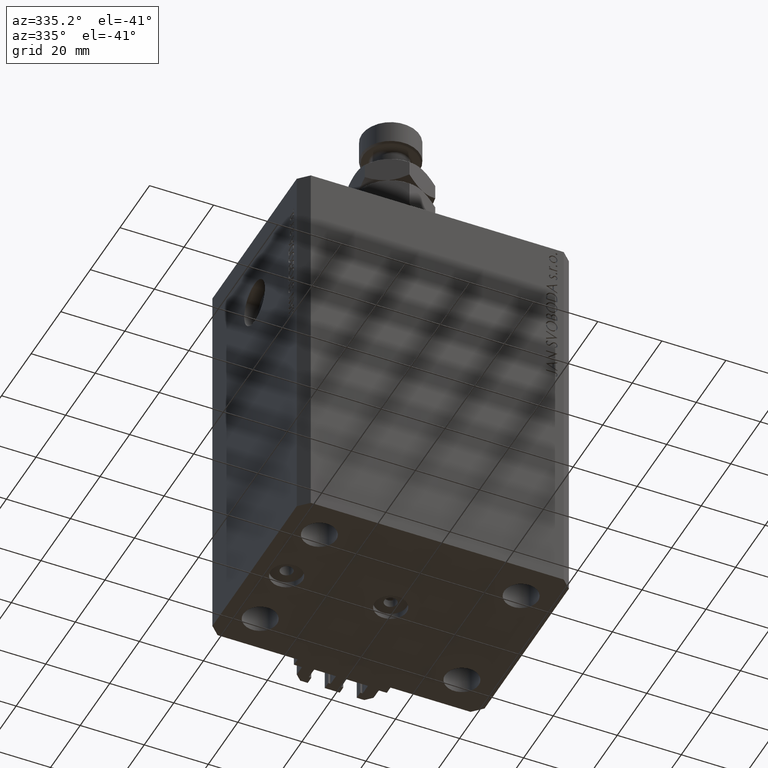
[diagram: clean part render]
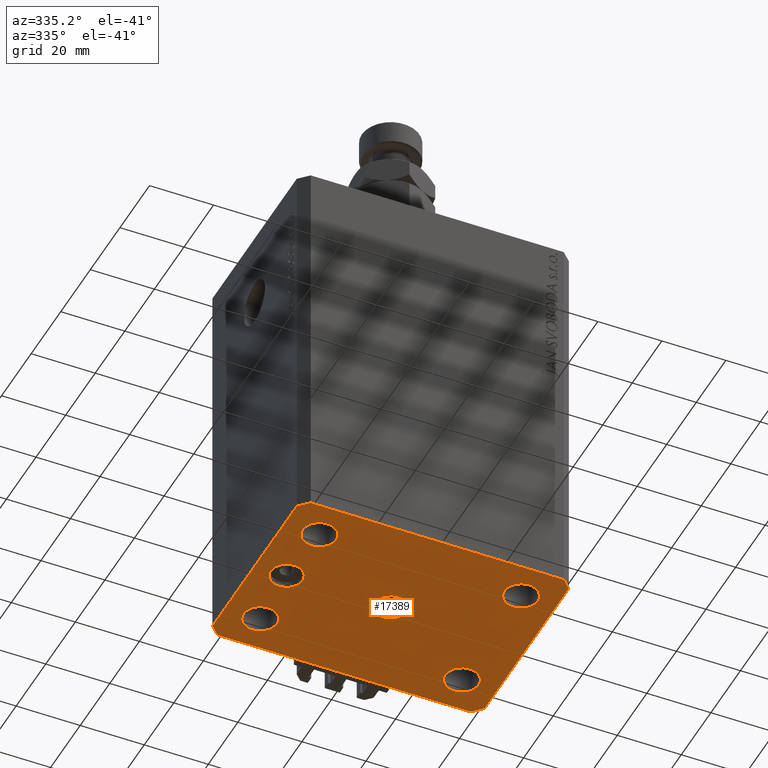
[diagram: same view with one face highlighted and labeled with its STEP entity id]
A machine part, auxiliary view. The second image highlights one B-rep face of the part: STEP entity #17389.
In plain terms, the highlighted planar face has unit normal (0, 0, 1).
Its self-contained STEP definition (entity closure, byte-faithful):
#393 = FACE_BOUND ( 'NONE', #38504, .T. ) ;
#733 = EDGE_CURVE ( 'NONE', #18861, #32940, #9337, .T. ) ;
#808 = VECTOR ( 'NONE', #39582, 1000.000000000000000 ) ;
#1113 = DIRECTION ( 'NONE',  ( 1.000000000000000000, 0.000000000000000000, 0.000000000000000000 ) ) ;
#1997 = CARTESIAN_POINT ( 'NONE',  ( -42.50000000000000000, -28.50000000000000000, -123.0000000000000000 ) ) ;
#2126 = EDGE_CURVE ( 'NONE', #23065, #38907, #45136, .T. ) ;
#2165 = VERTEX_POINT ( 'NONE', #28685 ) ;
#2398 = AXIS2_PLACEMENT_3D ( 'NONE', #5884, #47504, #6126 ) ;
#2417 = CARTESIAN_POINT ( 'NONE',  ( -31.50000000000000000, 19.99999999999999645, -123.0000000000000000 ) ) ;
#2634 = CIRCLE ( 'NONE', #5004, 5.250000000000000888 ) ;
#2753 = DIRECTION ( 'NONE',  ( 1.000000000000000000, 0.000000000000000000, -0.000000000000000000 ) ) ;
#2847 = EDGE_CURVE ( 'NONE', #46237, #17879, #11118, .T. ) ;
#3498 = DIRECTION ( 'NONE',  ( 1.000000000000000000, 0.000000000000000000, 0.000000000000000000 ) ) ;
#3975 = CARTESIAN_POINT ( 'NONE',  ( 26.24999999999999645, -20.00000000000000355, -123.0000000000000000 ) ) ;
#4167 = DIRECTION ( 'NONE',  ( 0.000000000000000000, 0.000000000000000000, -1.000000000000000000 ) ) ;
#4182 = CARTESIAN_POINT ( 'NONE',  ( 31.49999999999999289, -20.00000000000000355, -123.0000000000000000 ) ) ;
#4481 = CIRCLE ( 'NONE', #40129, 5.250000000000000888 ) ;
#4557 = CARTESIAN_POINT ( 'NONE',  ( 39.50000000000056843, 31.50000000000000000, -123.0000000000000000 ) ) ;
#4839 = CARTESIAN_POINT ( 'NONE',  ( 39.50000000000056843, 31.50000000000000000, -123.0000000000000000 ) ) ;
#4919 = AXIS2_PLACEMENT_3D ( 'NONE', #4182, #26016, #41132 ) ;
#5004 = AXIS2_PLACEMENT_3D ( 'NONE', #20827, #9686, #21317 ) ;
#5587 = EDGE_CURVE ( 'NONE', #29445, #13204, #6450, .T. ) ;
#5884 = CARTESIAN_POINT ( 'NONE',  ( -32.50000000000000000, 0.000000000000000000, -123.0000000000000000 ) ) ;
#6126 = DIRECTION ( 'NONE',  ( -1.000000000000000000, 0.000000000000000000, 0.000000000000000000 ) ) ;
#6450 = CIRCLE ( 'NONE', #46820, 5.250000000000000888 ) ;
#6983 = EDGE_CURVE ( 'NONE', #28849, #12690, #19172, .T. ) ;
#7272 = AXIS2_PLACEMENT_3D ( 'NONE', #8385, #4167, #14841 ) ;
#7560 = DIRECTION ( 'NONE',  ( 0.000000000000000000, 0.000000000000000000, 1.000000000000000000 ) ) ;
#7607 = CARTESIAN_POINT ( 'NONE',  ( 31.49999999999999289, -20.00000000000000355, -123.0000000000000000 ) ) ;
#7866 = ORIENTED_EDGE ( 'NONE', *, *, #12911, .F. ) ;
#8096 = ORIENTED_EDGE ( 'NONE', *, *, #47483, .F. ) ;
#8119 = ORIENTED_EDGE ( 'NONE', *, *, #38220, .F. ) ;
#8385 = CARTESIAN_POINT ( 'NONE',  ( 0.000000000000000000, 0.000000000000000000, -123.0000000000000000 ) ) ;
#8456 = ORIENTED_EDGE ( 'NONE', *, *, #6983, .F. ) ;
#8608 = LINE ( 'NONE', #38859, #8731 ) ;
#8731 = VECTOR ( 'NONE', #19509, 1000.000000000000114 ) ;
#8845 = CARTESIAN_POINT ( 'NONE',  ( 36.75000000000000000, 19.99999999999999289, -123.0000000000000000 ) ) ;
#8986 = CIRCLE ( 'NONE', #46214, 4.999999999999997335 ) ;
#9025 = DIRECTION ( 'NONE',  ( -0.000000000000000000, -0.000000000000000000, -1.000000000000000000 ) ) ;
#9039 = CARTESIAN_POINT ( 'NONE',  ( -5.000000000000000000, 0.000000000000000000, -123.0000000000000000 ) ) ;
#9337 = LINE ( 'NONE', #24448, #808 ) ;
#9686 = DIRECTION ( 'NONE',  ( -0.000000000000000000, -0.000000000000000000, -1.000000000000000000 ) ) ;
#9942 = CARTESIAN_POINT ( 'NONE',  ( -27.50000000000000355, 6.123233995736762338E-16, -123.0000000000000000 ) ) ;
#10173 = DIRECTION ( 'NONE',  ( -0.000000000000000000, -0.000000000000000000, -1.000000000000000000 ) ) ;
#10641 = VECTOR ( 'NONE', #13405, 1000.000000000000000 ) ;
#10871 = DIRECTION ( 'NONE',  ( 0.000000000000000000, 0.000000000000000000, -1.000000000000000000 ) ) ;
#10880 = CARTESIAN_POINT ( 'NONE',  ( -36.75000000000000000, 19.99999999999999645, -123.0000000000000000 ) ) ;
#10922 = LINE ( 'NONE', #18354, #48419 ) ;
#11107 = ORIENTED_EDGE ( 'NONE', *, *, #733, .F. ) ;
#11118 = CIRCLE ( 'NONE', #33321, 5.249999999999997335 ) ;
#11168 = CIRCLE ( 'NONE', #34151, 5.000000000000000000 ) ;
#11271 = PLANE ( 'NONE',  #15435 ) ;
#11560 = DIRECTION ( 'NONE',  ( -0.000000000000000000, -0.000000000000000000, -1.000000000000000000 ) ) ;
#11957 = ORIENTED_EDGE ( 'NONE', *, *, #31570, .F. ) ;
#12022 = DIRECTION ( 'NONE',  ( 0.000000000000000000, -1.000000000000000000, 0.000000000000000000 ) ) ;
#12201 = AXIS2_PLACEMENT_3D ( 'NONE', #37196, #10173, #48844 ) ;
#12258 = FACE_BOUND ( 'NONE', #23371, .T. ) ;
#12690 = VERTEX_POINT ( 'NONE', #22102 ) ;
#12911 = EDGE_CURVE ( 'NONE', #13204, #29445, #2634, .T. ) ;
#13153 = DIRECTION ( 'NONE',  ( -1.000000000000000000, 0.000000000000000000, 0.000000000000000000 ) ) ;
#13204 = VERTEX_POINT ( 'NONE', #45726 ) ;
#13315 = DIRECTION ( 'NONE',  ( -0.000000000000000000, -0.000000000000000000, -1.000000000000000000 ) ) ;
#13405 = DIRECTION ( 'NONE',  ( -0.7071067811865471286, -0.7071067811865479058, 0.000000000000000000 ) ) ;
#13999 = LINE ( 'NONE', #21183, #46350 ) ;
#14841 = DIRECTION ( 'NONE',  ( -1.000000000000000000, 0.000000000000000000, 0.000000000000000000 ) ) ;
#14874 = ORIENTED_EDGE ( 'NONE', *, *, #25177, .F. ) ;
#14999 = FACE_BOUND ( 'NONE', #48134, .T. ) ;
#15435 = AXIS2_PLACEMENT_3D ( 'NONE', #41530, #7560, #2753 ) ;
#15674 = CARTESIAN_POINT ( 'NONE',  ( -31.49999999999999289, -20.00000000000000355, -123.0000000000000000 ) ) ;
#15956 = DIRECTION ( 'NONE',  ( -1.000000000000000000, 0.000000000000000000, 0.000000000000000000 ) ) ;
#15969 = DIRECTION ( 'NONE',  ( 1.000000000000000000, 0.000000000000000000, 0.000000000000000000 ) ) ;
#16341 = VERTEX_POINT ( 'NONE', #17418 ) ;
#16399 = CARTESIAN_POINT ( 'NONE',  ( 5.000000000000000000, 6.123233995736765296E-16, -123.0000000000000000 ) ) ;
#16400 = EDGE_CURVE ( 'NONE', #16341, #18861, #18148, .T. ) ;
#16604 = VERTEX_POINT ( 'NONE', #16399 ) ;
#16970 = CARTESIAN_POINT ( 'NONE',  ( -42.50000000000000000, 28.50000000000000000, -123.0000000000000000 ) ) ;
#17092 = EDGE_LOOP ( 'NONE', ( #8456, #29699, #11107, #41248, #24252, #31682, #35366, #20727 ) ) ;
#17389 = ADVANCED_FACE ( 'NONE', ( #31120, #19194, #12258, #393, #14999, #30131, #45237 ), #11271, .F. ) ;
#17418 = CARTESIAN_POINT ( 'NONE',  ( 39.50000000000000711, -31.50000000000000000, -123.0000000000000000 ) ) ;
#17468 = DIRECTION ( 'NONE',  ( 0.7071067811865471286, -0.7071067811865479058, 0.000000000000000000 ) ) ;
#17618 = EDGE_LOOP ( 'NONE', ( #38369, #45514 ) ) ;
#17879 = VERTEX_POINT ( 'NONE', #8845 ) ;
#18063 = DIRECTION ( 'NONE',  ( -1.000000000000000000, 0.000000000000000000, 0.000000000000000000 ) ) ;
#18148 = LINE ( 'NONE', #48389, #31277 ) ;
#18354 = CARTESIAN_POINT ( 'NONE',  ( -39.50000000000000711, -31.50000000000000000, -123.0000000000000000 ) ) ;
#18813 = VERTEX_POINT ( 'NONE', #1997 ) ;
#18861 = VERTEX_POINT ( 'NONE', #36681 ) ;
#19172 = LINE ( 'NONE', #4557, #35058 ) ;
#19194 = FACE_BOUND ( 'NONE', #17618, .T. ) ;
#19509 = DIRECTION ( 'NONE',  ( -0.7071067811865356934, 0.7071067811865594521, 0.000000000000000000 ) ) ;
#20727 = ORIENTED_EDGE ( 'NONE', *, *, #38940, .F. ) ;
#20827 = CARTESIAN_POINT ( 'NONE',  ( -31.50000000000000000, 19.99999999999999645, -123.0000000000000000 ) ) ;
#20993 = CARTESIAN_POINT ( 'NONE',  ( -26.24999999999999289, -20.00000000000000355, -123.0000000000000000 ) ) ;
#21183 = CARTESIAN_POINT ( 'NONE',  ( -42.50000000000000000, -28.50000000000000000, -123.0000000000000000 ) ) ;
#21311 = CARTESIAN_POINT ( 'NONE',  ( 0.000000000000000000, 0.000000000000000000, -123.0000000000000000 ) ) ;
#21317 = DIRECTION ( 'NONE',  ( 1.000000000000000000, 0.000000000000000000, 0.000000000000000000 ) ) ;
#21772 = CARTESIAN_POINT ( 'NONE',  ( -32.50000000000000000, 0.000000000000000000, -123.0000000000000000 ) ) ;
#21968 = CARTESIAN_POINT ( 'NONE',  ( -37.50000000000000000, 0.000000000000000000, -123.0000000000000000 ) ) ;
#22102 = CARTESIAN_POINT ( 'NONE',  ( -39.50000000000000711, 31.50000000000000000, -123.0000000000000000 ) ) ;
#23065 = VERTEX_POINT ( 'NONE', #21968 ) ;
#23099 = CARTESIAN_POINT ( 'NONE',  ( -36.74999999999999289, -20.00000000000000355, -123.0000000000000000 ) ) ;
#23371 = EDGE_LOOP ( 'NONE', ( #32304, #8096 ) ) ;
#23682 = LINE ( 'NONE', #16970, #47619 ) ;
#24252 = ORIENTED_EDGE ( 'NONE', *, *, #32364, .F. ) ;
#24448 = CARTESIAN_POINT ( 'NONE',  ( 42.50000000000000711, -28.50000000000000355, -123.0000000000000000 ) ) ;
#25129 = CARTESIAN_POINT ( 'NONE',  ( 36.74999999999999289, -20.00000000000000355, -123.0000000000000000 ) ) ;
#25177 = EDGE_CURVE ( 'NONE', #35223, #27327, #38174, .T. ) ;
#25468 = AXIS2_PLACEMENT_3D ( 'NONE', #34813, #9025, #1113 ) ;
#26016 = DIRECTION ( 'NONE',  ( -0.000000000000000000, -0.000000000000000000, -1.000000000000000000 ) ) ;
#26291 = CIRCLE ( 'NONE', #4919, 5.249999999999997335 ) ;
#26642 = CARTESIAN_POINT ( 'NONE',  ( 31.50000000000000000, 19.99999999999999289, -123.0000000000000000 ) ) ;
#26858 = EDGE_CURVE ( 'NONE', #32940, #28849, #8608, .T. ) ;
#27327 = VERTEX_POINT ( 'NONE', #3975 ) ;
#27436 = DIRECTION ( 'NONE',  ( 1.000000000000000000, 0.000000000000000000, 0.000000000000000000 ) ) ;
#28210 = DIRECTION ( 'NONE',  ( 1.000000000000000000, 0.000000000000000000, 0.000000000000000000 ) ) ;
#28476 = CARTESIAN_POINT ( 'NONE',  ( -42.50000000000000000, 28.50000000000000000, -123.0000000000000000 ) ) ;
#28486 = ORIENTED_EDGE ( 'NONE', *, *, #5587, .F. ) ;
#28532 = EDGE_CURVE ( 'NONE', #16604, #47300, #36555, .T. ) ;
#28685 = CARTESIAN_POINT ( 'NONE',  ( -39.50000000000000711, -31.50000000000000000, -123.0000000000000000 ) ) ;
#28836 = EDGE_CURVE ( 'NONE', #45608, #18813, #23682, .T. ) ;
#28849 = VERTEX_POINT ( 'NONE', #4839 ) ;
#29445 = VERTEX_POINT ( 'NONE', #10880 ) ;
#29473 = AXIS2_PLACEMENT_3D ( 'NONE', #7607, #11560, #27436 ) ;
#29699 = ORIENTED_EDGE ( 'NONE', *, *, #26858, .F. ) ;
#30131 = FACE_BOUND ( 'NONE', #33275, .T. ) ;
#30280 = ORIENTED_EDGE ( 'NONE', *, *, #2847, .F. ) ;
#30384 = EDGE_CURVE ( 'NONE', #27327, #35223, #26291, .T. ) ;
#31120 = FACE_BOUND ( 'NONE', #33469, .T. ) ;
#31277 = VECTOR ( 'NONE', #44686, 1000.000000000000000 ) ;
#31570 = EDGE_CURVE ( 'NONE', #47300, #16604, #11168, .T. ) ;
#31682 = ORIENTED_EDGE ( 'NONE', *, *, #40550, .F. ) ;
#32129 = EDGE_CURVE ( 'NONE', #33553, #47444, #39698, .T. ) ;
#32270 = DIRECTION ( 'NONE',  ( 0.000000000000000000, 0.000000000000000000, -1.000000000000000000 ) ) ;
#32283 = LINE ( 'NONE', #47371, #10641 ) ;
#32304 = ORIENTED_EDGE ( 'NONE', *, *, #32129, .F. ) ;
#32364 = EDGE_CURVE ( 'NONE', #2165, #16341, #10922, .T. ) ;
#32940 = VERTEX_POINT ( 'NONE', #43805 ) ;
#33275 = EDGE_LOOP ( 'NONE', ( #7866, #28486 ) ) ;
#33321 = AXIS2_PLACEMENT_3D ( 'NONE', #26642, #42000, #15969 ) ;
#33469 = EDGE_LOOP ( 'NONE', ( #11957, #38250 ) ) ;
#33553 = VERTEX_POINT ( 'NONE', #20993 ) ;
#34151 = AXIS2_PLACEMENT_3D ( 'NONE', #21311, #32270, #13153 ) ;
#34343 = CARTESIAN_POINT ( 'NONE',  ( 26.25000000000000355, 19.99999999999999289, -123.0000000000000000 ) ) ;
#34813 = CARTESIAN_POINT ( 'NONE',  ( -31.49999999999999289, -20.00000000000000355, -123.0000000000000000 ) ) ;
#35058 = VECTOR ( 'NONE', #15956, 1000.000000000000000 ) ;
#35223 = VERTEX_POINT ( 'NONE', #25129 ) ;
#35366 = ORIENTED_EDGE ( 'NONE', *, *, #28836, .F. ) ;
#36555 = CIRCLE ( 'NONE', #7272, 5.000000000000000000 ) ;
#36681 = CARTESIAN_POINT ( 'NONE',  ( 42.50000000000000711, -28.50000000000000355, -123.0000000000000000 ) ) ;
#36783 = EDGE_CURVE ( 'NONE', #38907, #23065, #8986, .T. ) ;
#37196 = CARTESIAN_POINT ( 'NONE',  ( 31.50000000000000000, 19.99999999999999289, -123.0000000000000000 ) ) ;
#38174 = CIRCLE ( 'NONE', #29473, 5.249999999999997335 ) ;
#38220 = EDGE_CURVE ( 'NONE', #17879, #46237, #48621, .T. ) ;
#38250 = ORIENTED_EDGE ( 'NONE', *, *, #28532, .F. ) ;
#38369 = ORIENTED_EDGE ( 'NONE', *, *, #2126, .F. ) ;
#38504 = EDGE_LOOP ( 'NONE', ( #14874, #40618 ) ) ;
#38859 = CARTESIAN_POINT ( 'NONE',  ( 42.50000000000051870, 28.49999999999995381, -123.0000000000000000 ) ) ;
#38907 = VERTEX_POINT ( 'NONE', #9942 ) ;
#38940 = EDGE_CURVE ( 'NONE', #12690, #45608, #32283, .T. ) ;
#39582 = DIRECTION ( 'NONE',  ( 8.886653596232072440E-15, 1.000000000000000000, 0.000000000000000000 ) ) ;
#39698 = CIRCLE ( 'NONE', #25468, 5.250000000000000888 ) ;
#40129 = AXIS2_PLACEMENT_3D ( 'NONE', #15674, #45181, #45678 ) ;
#40550 = EDGE_CURVE ( 'NONE', #18813, #2165, #13999, .T. ) ;
#40618 = ORIENTED_EDGE ( 'NONE', *, *, #30384, .F. ) ;
#41132 = DIRECTION ( 'NONE',  ( 1.000000000000000000, 0.000000000000000000, 0.000000000000000000 ) ) ;
#41248 = ORIENTED_EDGE ( 'NONE', *, *, #16400, .F. ) ;
#41530 = CARTESIAN_POINT ( 'NONE',  ( 0.000000000000000000, 0.000000000000000000, -123.0000000000000000 ) ) ;
#42000 = DIRECTION ( 'NONE',  ( -0.000000000000000000, -0.000000000000000000, -1.000000000000000000 ) ) ;
#43805 = CARTESIAN_POINT ( 'NONE',  ( 42.50000000000051870, 28.49999999999995381, -123.0000000000000000 ) ) ;
#44686 = DIRECTION ( 'NONE',  ( 0.7071067811865483499, 0.7071067811865466846, 0.000000000000000000 ) ) ;
#45136 = CIRCLE ( 'NONE', #2398, 4.999999999999997335 ) ;
#45181 = DIRECTION ( 'NONE',  ( -0.000000000000000000, -0.000000000000000000, -1.000000000000000000 ) ) ;
#45237 = FACE_OUTER_BOUND ( 'NONE', #17092, .T. ) ;
#45514 = ORIENTED_EDGE ( 'NONE', *, *, #36783, .F. ) ;
#45608 = VERTEX_POINT ( 'NONE', #28476 ) ;
#45678 = DIRECTION ( 'NONE',  ( 1.000000000000000000, 0.000000000000000000, 0.000000000000000000 ) ) ;
#45726 = CARTESIAN_POINT ( 'NONE',  ( -26.25000000000000000, 19.99999999999999645, -123.0000000000000000 ) ) ;
#46214 = AXIS2_PLACEMENT_3D ( 'NONE', #21772, #10871, #18063 ) ;
#46237 = VERTEX_POINT ( 'NONE', #34343 ) ;
#46350 = VECTOR ( 'NONE', #17468, 1000.000000000000000 ) ;
#46820 = AXIS2_PLACEMENT_3D ( 'NONE', #2417, #13315, #28210 ) ;
#47300 = VERTEX_POINT ( 'NONE', #9039 ) ;
#47371 = CARTESIAN_POINT ( 'NONE',  ( -39.50000000000000711, 31.50000000000000000, -123.0000000000000000 ) ) ;
#47444 = VERTEX_POINT ( 'NONE', #23099 ) ;
#47483 = EDGE_CURVE ( 'NONE', #47444, #33553, #4481, .T. ) ;
#47504 = DIRECTION ( 'NONE',  ( 0.000000000000000000, 0.000000000000000000, -1.000000000000000000 ) ) ;
#47619 = VECTOR ( 'NONE', #12022, 1000.000000000000000 ) ;
#48134 = EDGE_LOOP ( 'NONE', ( #8119, #30280 ) ) ;
#48389 = CARTESIAN_POINT ( 'NONE',  ( 39.50000000000000711, -31.50000000000000000, -123.0000000000000000 ) ) ;
#48419 = VECTOR ( 'NONE', #3498, 1000.000000000000000 ) ;
#48621 = CIRCLE ( 'NONE', #12201, 5.249999999999997335 ) ;
#48844 = DIRECTION ( 'NONE',  ( 1.000000000000000000, 0.000000000000000000, 0.000000000000000000 ) ) ;